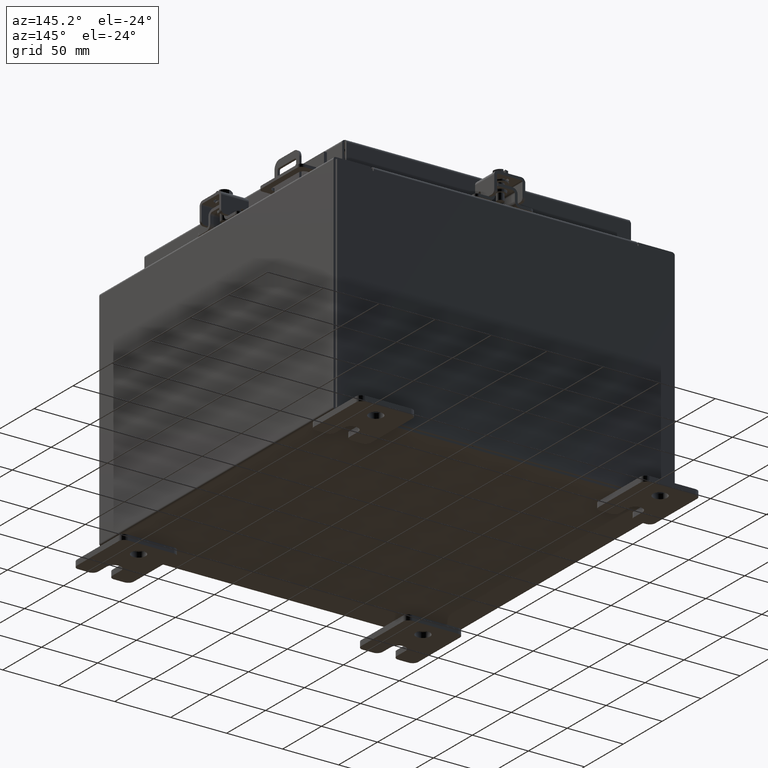
[diagram: clean part render]
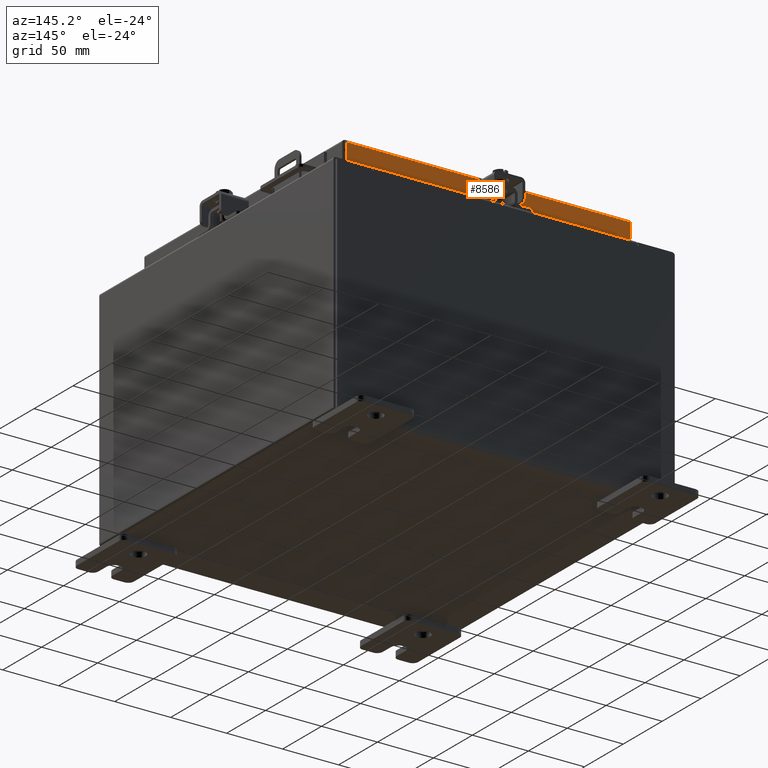
[diagram: same view with one face highlighted and labeled with its STEP entity id]
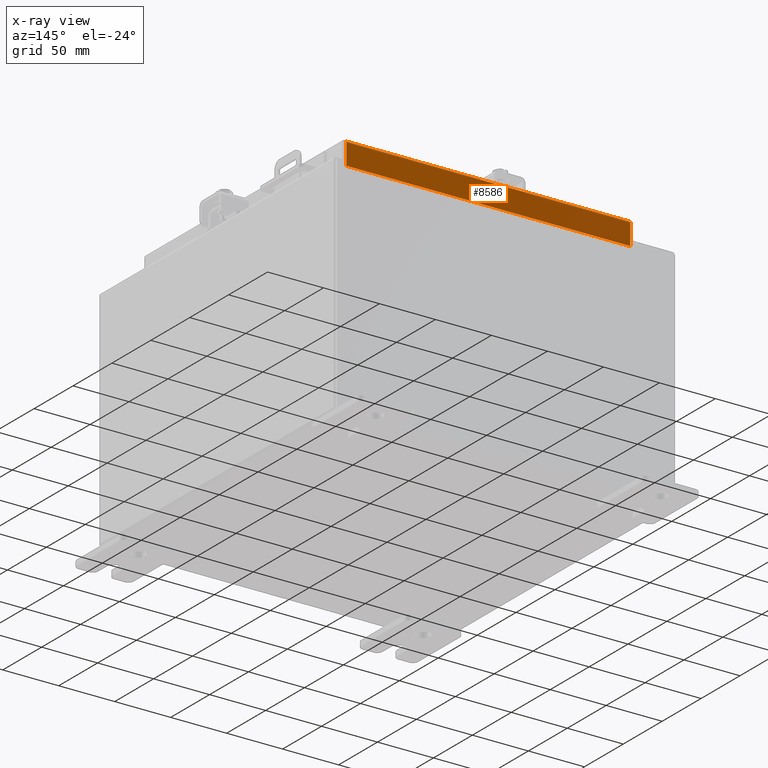
[diagram: x-ray of the same camera — body ghosted, the highlighted face saturated]
A machine part, auxiliary view. The second image highlights one B-rep face of the part: STEP entity #8586.
The next image is the same camera in x-ray: the body ghosted, the highlighted face saturated — about 0% of this face is hidden behind the body in this view.
In plain terms, the highlighted planar face has unit normal (0, -1, -0).
Its self-contained STEP definition (entity closure, byte-faithful):
#313 = DIRECTION ( 'NONE',  ( 1.000000000000000000, 4.379057701015054300E-047, 1.210448599004448700E-016 ) ) ;
#524 = ORIENTED_EDGE ( 'NONE', *, *, #22326, .F. ) ;
#1229 = LINE ( 'NONE', #5601, #10275 ) ;
#1918 = ORIENTED_EDGE ( 'NONE', *, *, #10649, .F. ) ;
#3764 = VERTEX_POINT ( 'NONE', #21470 ) ;
#3832 = ORIENTED_EDGE ( 'NONE', *, *, #10775, .T. ) ;
#4116 = VERTEX_POINT ( 'NONE', #8174 ) ;
#5100 = VERTEX_POINT ( 'NONE', #16272 ) ;
#5156 = CARTESIAN_POINT ( 'NONE',  ( -4.989157864376269700, 5.093999999999998500, -0.07470000000000015500 ) ) ;
#5224 = CARTESIAN_POINT ( 'NONE',  ( 4.989157864376268000, 5.094000000000001200, -0.8499999999999999800 ) ) ;
#5601 = CARTESIAN_POINT ( 'NONE',  ( 4.989157864376268000, 5.093999999999998500, 1.420560956705417000E-014 ) ) ;
#5694 = ORIENTED_EDGE ( 'NONE', *, *, #16425, .F. ) ;
#6549 = VECTOR ( 'NONE', #313, 39.37007874015748100 ) ;
#7525 = CARTESIAN_POINT ( 'NONE',  ( -4.989157864376269700, 5.093999999999998500, -0.08770000000000026400 ) ) ;
#7592 = VECTOR ( 'NONE', #14214, 39.37007874015748100 ) ;
#7904 = LINE ( 'NONE', #15685, #16963 ) ;
#8174 = CARTESIAN_POINT ( 'NONE',  ( -4.989157864376269700, 5.094000000000001200, -0.8500000000000010900 ) ) ;
#8586 = ADVANCED_FACE ( 'NONE', ( #14814 ), #10600, .F. ) ;
#8720 = CARTESIAN_POINT ( 'NONE',  ( 4.989157864376268000, 5.093999999999998500, -0.08770000000000026400 ) ) ;
#8779 = CARTESIAN_POINT ( 'NONE',  ( 0.0000000000000000000, 5.093999999999998500, 1.420560956705417000E-014 ) ) ;
#10275 = VECTOR ( 'NONE', #21878, 39.37007874015748100 ) ;
#10600 = PLANE ( 'NONE',  #20168 ) ;
#10649 = EDGE_CURVE ( 'NONE', #4116, #3764, #12525, .T. ) ;
#10717 = CARTESIAN_POINT ( 'NONE',  ( -5.078000000000001200, 5.094000000000001200, -0.8500000000000010900 ) ) ;
#10775 = EDGE_CURVE ( 'NONE', #17257, #13870, #1229, .T. ) ;
#11145 = CARTESIAN_POINT ( 'NONE',  ( -5.078000000000001200, 5.094000000000001200, -0.8500000000000010900 ) ) ;
#12368 = LINE ( 'NONE', #5156, #7592 ) ;
#12525 = LINE ( 'NONE', #10717, #17924 ) ;
#12704 = ORIENTED_EDGE ( 'NONE', *, *, #17870, .F. ) ;
#13718 = CARTESIAN_POINT ( 'NONE',  ( -4.239157864376270600, 5.093999999999998500, -0.8500000000000010900 ) ) ;
#13870 = VERTEX_POINT ( 'NONE', #5224 ) ;
#13969 = ORIENTED_EDGE ( 'NONE', *, *, #17180, .F. ) ;
#14214 = DIRECTION ( 'NONE',  ( -0.0000000000000000000, 2.818880942772355800E-015, -1.000000000000000000 ) ) ;
#14814 = FACE_OUTER_BOUND ( 'NONE', #22749, .T. ) ;
#15685 = CARTESIAN_POINT ( 'NONE',  ( -5.078000000000001200, 5.093999999999998500, -0.08770000000000026400 ) ) ;
#16272 = CARTESIAN_POINT ( 'NONE',  ( 4.239157864376268000, 5.093999999999998500, -0.8500000000000010900 ) ) ;
#16425 = EDGE_CURVE ( 'NONE', #3764, #5100, #17901, .T. ) ;
#16963 = VECTOR ( 'NONE', #19325, 39.37007874015748100 ) ;
#17180 = EDGE_CURVE ( 'NONE', #17257, #18077, #7904, .T. ) ;
#17257 = VERTEX_POINT ( 'NONE', #8720 ) ;
#17852 = LINE ( 'NONE', #11145, #6549 ) ;
#17870 = EDGE_CURVE ( 'NONE', #18077, #4116, #12368, .T. ) ;
#17901 = LINE ( 'NONE', #13718, #18381 ) ;
#17924 = VECTOR ( 'NONE', #23346, 39.37007874015748100 ) ;
#18077 = VERTEX_POINT ( 'NONE', #7525 ) ;
#18381 = VECTOR ( 'NONE', #22755, 39.37007874015748100 ) ;
#19325 = DIRECTION ( 'NONE',  ( -1.000000000000000000, -3.412110487939138600E-031, -9.300620212429610200E-046 ) ) ;
#20168 = AXIS2_PLACEMENT_3D ( 'NONE', #8779, #21370, #23241 ) ;
#21370 = DIRECTION ( 'NONE',  ( 3.412110487939137700E-031, -1.000000000000000000, -2.818880942772355800E-015 ) ) ;
#21470 = CARTESIAN_POINT ( 'NONE',  ( -4.239157864376270600, 5.093999999999998500, -0.8500000000000010900 ) ) ;
#21878 = DIRECTION ( 'NONE',  ( 0.0000000000000000000, 2.818880942772355800E-015, -1.000000000000000000 ) ) ;
#22326 = EDGE_CURVE ( 'NONE', #5100, #13870, #17852, .T. ) ;
#22749 = EDGE_LOOP ( 'NONE', ( #13969, #3832, #524, #5694, #1918, #12704 ) ) ;
#22755 = DIRECTION ( 'NONE',  ( 1.000000000000000000, -0.0000000000000000000, -0.0000000000000000000 ) ) ;
#23241 = DIRECTION ( 'NONE',  ( 0.0000000000000000000, 2.818880942772355800E-015, -1.000000000000000000 ) ) ;
#23346 = DIRECTION ( 'NONE',  ( 1.000000000000000000, 4.379057701015054300E-047, 1.210448599004448700E-016 ) ) ;